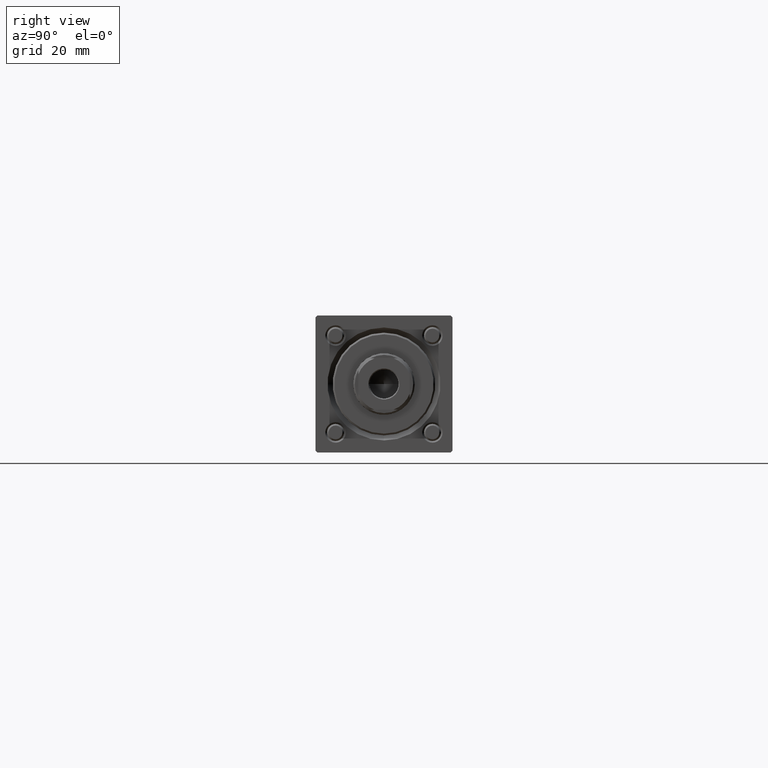
[diagram: clean part render]
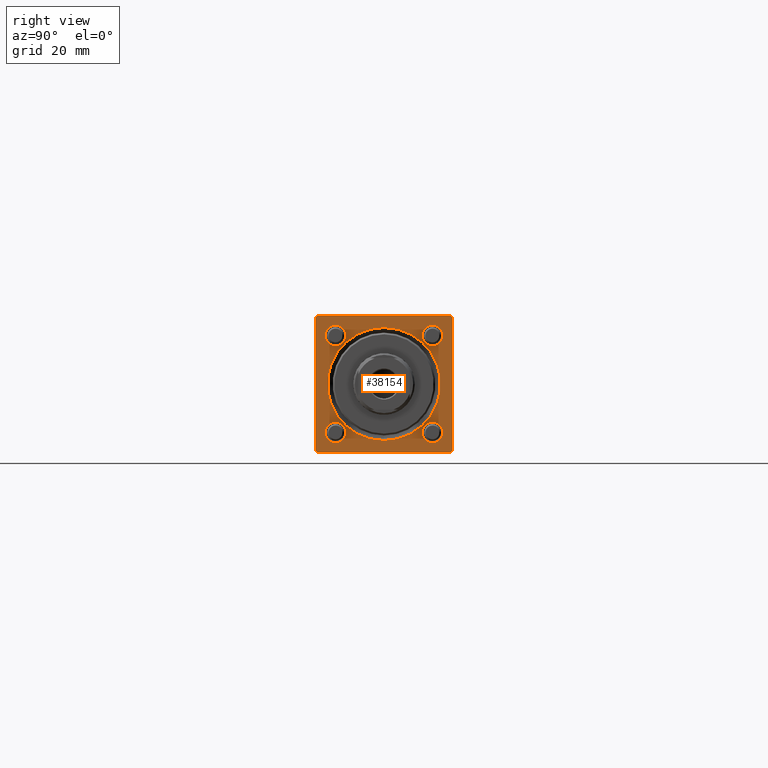
[diagram: same view with one face highlighted and labeled with its STEP entity id]
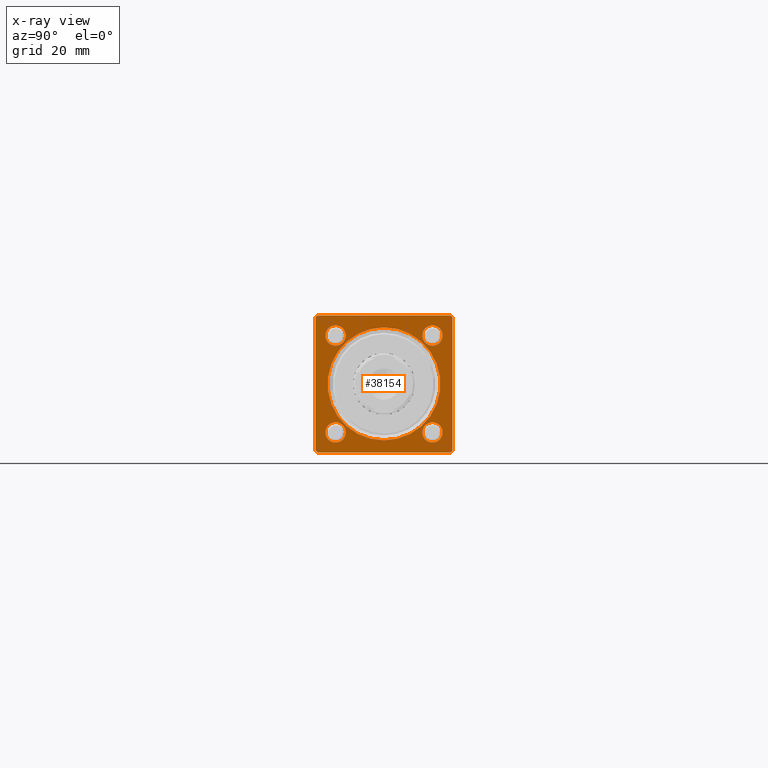
[diagram: x-ray of the same camera — body ghosted, the highlighted face saturated]
A machine part, right view. The second image highlights one B-rep face of the part: STEP entity #38154.
The next image is the same camera in x-ray: the body ghosted, the highlighted face saturated — about 0% of this face is hidden behind the body in this view.
In plain terms, the highlighted planar face has unit normal (-1, 0, 0).
Its self-contained STEP definition (entity closure, byte-faithful):
#786 = FACE_OUTER_BOUND ( 'NONE', #45889, .T. ) ;
#789 = CARTESIAN_POINT ( 'NONE',  ( 179.0000000000000000, -19.50000000000002487, -20.00000000000000000 ) ) ;
#910 = DIRECTION ( 'NONE',  ( 0.000000000000000000, 0.000000000000000000, 1.000000000000000000 ) ) ;
#1192 = CARTESIAN_POINT ( 'NONE',  ( 179.0000000000000000, 14.15000000000000036, 14.15000000000000036 ) ) ;
#1463 = DIRECTION ( 'NONE',  ( -1.000000000000000000, -0.000000000000000000, -0.000000000000000000 ) ) ;
#1474 = DIRECTION ( 'NONE',  ( 0.000000000000000000, 0.000000000000000000, 1.000000000000000000 ) ) ;
#2105 = AXIS2_PLACEMENT_3D ( 'NONE', #18940, #1463, #910 ) ;
#2646 = ORIENTED_EDGE ( 'NONE', *, *, #13769, .T. ) ;
#2763 = CARTESIAN_POINT ( 'NONE',  ( 179.0000000000000000, 19.99999999999999645, -19.50000000000000000 ) ) ;
#2836 = EDGE_CURVE ( 'NONE', #26387, #24884, #55268, .T. ) ;
#2943 = VERTEX_POINT ( 'NONE', #45751 ) ;
#3174 = CARTESIAN_POINT ( 'NONE',  ( 179.0000000000000000, -20.00000000000000355, 19.50000000000002487 ) ) ;
#3383 = LINE ( 'NONE', #3946, #17032 ) ;
#3913 = CARTESIAN_POINT ( 'NONE',  ( 179.0000000000000000, 0.000000000000000000, -16.49999999999998579 ) ) ;
#3943 = DIRECTION ( 'NONE',  ( 0.000000000000000000, 0.000000000000000000, 1.000000000000000000 ) ) ;
#3946 = CARTESIAN_POINT ( 'NONE',  ( 179.0000000000000000, 19.99999999999999645, -20.00000000000000000 ) ) ;
#4084 = CARTESIAN_POINT ( 'NONE',  ( 179.0000000000000000, 19.99999999999999645, 20.00000000000000000 ) ) ;
#4404 = EDGE_CURVE ( 'NONE', #24884, #26387, #22393, .T. ) ;
#4505 = DIRECTION ( 'NONE',  ( 0.000000000000000000, 0.000000000000000000, 1.000000000000000000 ) ) ;
#4514 = FACE_BOUND ( 'NONE', #16748, .T. ) ;
#6398 = VERTEX_POINT ( 'NONE', #31276 ) ;
#6783 = CARTESIAN_POINT ( 'NONE',  ( 179.0000000000000000, 14.15000000000000036, -14.15000000000000036 ) ) ;
#7160 = VERTEX_POINT ( 'NONE', #29382 ) ;
#7767 = VERTEX_POINT ( 'NONE', #3913 ) ;
#7962 = VECTOR ( 'NONE', #39074, 1000.000000000000000 ) ;
#8223 = CARTESIAN_POINT ( 'NONE',  ( 179.0000000000000000, -14.15000000000000036, 14.15000000000000036 ) ) ;
#8541 = EDGE_CURVE ( 'NONE', #2943, #22365, #16830, .T. ) ;
#8771 = DIRECTION ( 'NONE',  ( 0.000000000000000000, -0.7071067811865474617, 0.7071067811865474617 ) ) ;
#8942 = CARTESIAN_POINT ( 'NONE',  ( 179.0000000000000000, -20.00000000000000355, 19.99999999999999645 ) ) ;
#9451 = ORIENTED_EDGE ( 'NONE', *, *, #4404, .T. ) ;
#9946 = FACE_BOUND ( 'NONE', #41167, .T. ) ;
#10665 = ORIENTED_EDGE ( 'NONE', *, *, #26443, .T. ) ;
#11099 = CARTESIAN_POINT ( 'NONE',  ( 179.0000000000000000, -20.00000000000000355, 19.50000000000002487 ) ) ;
#11206 = ORIENTED_EDGE ( 'NONE', *, *, #8541, .T. ) ;
#11365 = DIRECTION ( 'NONE',  ( 0.000000000000000000, 0.000000000000000000, 1.000000000000000000 ) ) ;
#11515 = AXIS2_PLACEMENT_3D ( 'NONE', #19932, #15613, #24519 ) ;
#11862 = EDGE_CURVE ( 'NONE', #49887, #39176, #51212, .T. ) ;
#12198 = CARTESIAN_POINT ( 'NONE',  ( 179.0000000000000000, 19.50000000000002487, 20.00000000000000000 ) ) ;
#12254 = CARTESIAN_POINT ( 'NONE',  ( 179.0000000000000000, 0.000000000000000000, 0.000000000000000000 ) ) ;
#12817 = CARTESIAN_POINT ( 'NONE',  ( 179.0000000000000000, -14.15000000000000036, 14.15000000000000036 ) ) ;
#12970 = DIRECTION ( 'NONE',  ( 0.000000000000000000, 0.000000000000000000, 1.000000000000000000 ) ) ;
#13053 = CARTESIAN_POINT ( 'NONE',  ( 179.0000000000000000, 19.99999999999999645, -19.50000000000000000 ) ) ;
#13769 = EDGE_CURVE ( 'NONE', #23521, #53980, #40835, .T. ) ;
#14179 = VECTOR ( 'NONE', #24282, 1000.000000000000114 ) ;
#14800 = DIRECTION ( 'NONE',  ( -1.000000000000000000, -0.000000000000000000, -0.000000000000000000 ) ) ;
#15224 = VERTEX_POINT ( 'NONE', #51317 ) ;
#15229 = AXIS2_PLACEMENT_3D ( 'NONE', #12254, #55843, #29771 ) ;
#15613 = DIRECTION ( 'NONE',  ( -1.000000000000000000, -0.000000000000000000, -0.000000000000000000 ) ) ;
#15705 = DIRECTION ( 'NONE',  ( 0.000000000000000000, -1.000000000000000000, -8.673617379884035472E-17 ) ) ;
#15988 = FACE_BOUND ( 'NONE', #55072, .T. ) ;
#16091 = AXIS2_PLACEMENT_3D ( 'NONE', #1192, #49354, #1474 ) ;
#16748 = EDGE_LOOP ( 'NONE', ( #17325, #20395 ) ) ;
#16830 = CIRCLE ( 'NONE', #38829, 2.999999999999976463 ) ;
#17032 = VECTOR ( 'NONE', #52682, 1000.000000000000000 ) ;
#17129 = CARTESIAN_POINT ( 'NONE',  ( 179.0000000000000000, -19.50000000000006040, 19.99999999999999645 ) ) ;
#17325 = ORIENTED_EDGE ( 'NONE', *, *, #53767, .T. ) ;
#17368 = EDGE_CURVE ( 'NONE', #31749, #39176, #43361, .T. ) ;
#18534 = DIRECTION ( 'NONE',  ( -0.000000000000000000, 0.000000000000000000, 1.000000000000000000 ) ) ;
#18796 = CARTESIAN_POINT ( 'NONE',  ( 179.0000000000000000, 19.99999999999999645, 19.50000000000002842 ) ) ;
#18940 = CARTESIAN_POINT ( 'NONE',  ( 179.0000000000000000, 14.15000000000000036, -14.15000000000000036 ) ) ;
#19932 = CARTESIAN_POINT ( 'NONE',  ( 179.0000000000000000, 14.15000000000000036, 14.15000000000000036 ) ) ;
#19965 = CARTESIAN_POINT ( 'NONE',  ( 179.0000000000000000, 14.15000000000000036, 11.15000000000002700 ) ) ;
#20395 = ORIENTED_EDGE ( 'NONE', *, *, #20862, .T. ) ;
#20727 = VECTOR ( 'NONE', #8771, 1000.000000000000114 ) ;
#20862 = EDGE_CURVE ( 'NONE', #36508, #7767, #40141, .T. ) ;
#21273 = DIRECTION ( 'NONE',  ( 0.000000000000000000, 8.673617379884036705E-17, -1.000000000000000000 ) ) ;
#21788 = EDGE_CURVE ( 'NONE', #28064, #44743, #45622, .T. ) ;
#22365 = VERTEX_POINT ( 'NONE', #30830 ) ;
#22393 = CIRCLE ( 'NONE', #53483, 2.999999999999976463 ) ;
#22969 = ORIENTED_EDGE ( 'NONE', *, *, #53741, .F. ) ;
#23521 = VERTEX_POINT ( 'NONE', #38171 ) ;
#24282 = DIRECTION ( 'NONE',  ( -0.000000000000000000, 0.7071067811865474617, 0.7071067811865474617 ) ) ;
#24519 = DIRECTION ( 'NONE',  ( 0.000000000000000000, 0.000000000000000000, 1.000000000000000000 ) ) ;
#24884 = VERTEX_POINT ( 'NONE', #46512 ) ;
#25665 = EDGE_CURVE ( 'NONE', #6398, #46214, #44704, .T. ) ;
#26319 = PLANE ( 'NONE',  #28530 ) ;
#26387 = VERTEX_POINT ( 'NONE', #32359 ) ;
#26443 = EDGE_CURVE ( 'NONE', #7160, #15224, #31184, .T. ) ;
#26585 = DIRECTION ( 'NONE',  ( -1.000000000000000000, -0.000000000000000000, -0.000000000000000000 ) ) ;
#27565 = CARTESIAN_POINT ( 'NONE',  ( 179.0000000000000000, 19.49999999999999645, -20.00000000000000000 ) ) ;
#28064 = VERTEX_POINT ( 'NONE', #17129 ) ;
#28530 = AXIS2_PLACEMENT_3D ( 'NONE', #36040, #48085, #18534 ) ;
#29382 = CARTESIAN_POINT ( 'NONE',  ( 179.0000000000000000, -20.00000000000000000, -19.50000000000002487 ) ) ;
#29452 = DIRECTION ( 'NONE',  ( 0.000000000000000000, 0.000000000000000000, 1.000000000000000000 ) ) ;
#29771 = DIRECTION ( 'NONE',  ( 0.000000000000000000, 0.000000000000000000, 1.000000000000000000 ) ) ;
#29953 = CARTESIAN_POINT ( 'NONE',  ( 179.0000000000000000, 2.020667218593131128E-15, 16.49999999999998579 ) ) ;
#30774 = VECTOR ( 'NONE', #15705, 1000.000000000000000 ) ;
#30830 = CARTESIAN_POINT ( 'NONE',  ( 179.0000000000000000, 14.15000000000000036, -11.15000000000002522 ) ) ;
#31184 = LINE ( 'NONE', #789, #50227 ) ;
#31276 = CARTESIAN_POINT ( 'NONE',  ( 179.0000000000000000, -14.15000000000000036, 11.14999999999999858 ) ) ;
#31749 = VERTEX_POINT ( 'NONE', #18796 ) ;
#32359 = CARTESIAN_POINT ( 'NONE',  ( 179.0000000000000000, -14.15000000000000036, -17.14999999999997726 ) ) ;
#33550 = CIRCLE ( 'NONE', #15229, 16.49999999999998579 ) ;
#33823 = EDGE_CURVE ( 'NONE', #46214, #6398, #34954, .T. ) ;
#34638 = FACE_BOUND ( 'NONE', #43882, .T. ) ;
#34783 = DIRECTION ( 'NONE',  ( -1.000000000000000000, -0.000000000000000000, -0.000000000000000000 ) ) ;
#34841 = ORIENTED_EDGE ( 'NONE', *, *, #33823, .T. ) ;
#34954 = CIRCLE ( 'NONE', #41322, 3.000000000000004441 ) ;
#35554 = AXIS2_PLACEMENT_3D ( 'NONE', #12817, #26585, #4505 ) ;
#36040 = CARTESIAN_POINT ( 'NONE',  ( 179.0000000000000000, 0.000000000000000000, 0.000000000000000000 ) ) ;
#36345 = ORIENTED_EDGE ( 'NONE', *, *, #21788, .T. ) ;
#36508 = VERTEX_POINT ( 'NONE', #29953 ) ;
#36660 = EDGE_LOOP ( 'NONE', ( #11206, #52926 ) ) ;
#37157 = CIRCLE ( 'NONE', #16091, 2.999999999999973355 ) ;
#37251 = CARTESIAN_POINT ( 'NONE',  ( 179.0000000000000000, 19.99999999999999645, 20.00000000000000000 ) ) ;
#37410 = VECTOR ( 'NONE', #38170, 1000.000000000000000 ) ;
#38154 = ADVANCED_FACE ( 'NONE', ( #34638, #52102, #15988, #9946, #4514, #786 ), #26319, .F. ) ;
#38170 = DIRECTION ( 'NONE',  ( -0.000000000000000000, -0.7071067811865279218, -0.7071067811865671127 ) ) ;
#38171 = CARTESIAN_POINT ( 'NONE',  ( 179.0000000000000000, 14.15000000000000036, 17.14999999999997726 ) ) ;
#38498 = DIRECTION ( 'NONE',  ( -1.000000000000000000, -0.000000000000000000, -0.000000000000000000 ) ) ;
#38829 = AXIS2_PLACEMENT_3D ( 'NONE', #6783, #14800, #11365 ) ;
#39074 = DIRECTION ( 'NONE',  ( 0.000000000000000000, 0.000000000000000000, -1.000000000000000000 ) ) ;
#39176 = VERTEX_POINT ( 'NONE', #13053 ) ;
#39329 = LINE ( 'NONE', #8942, #47119 ) ;
#39747 = AXIS2_PLACEMENT_3D ( 'NONE', #43220, #43507, #3943 ) ;
#40141 = CIRCLE ( 'NONE', #44711, 16.49999999999998579 ) ;
#40835 = CIRCLE ( 'NONE', #11515, 2.999999999999973355 ) ;
#40989 = ORIENTED_EDGE ( 'NONE', *, *, #54758, .T. ) ;
#41167 = EDGE_LOOP ( 'NONE', ( #48745, #34841 ) ) ;
#41322 = AXIS2_PLACEMENT_3D ( 'NONE', #8223, #51224, #29452 ) ;
#43073 = DIRECTION ( 'NONE',  ( 0.000000000000000000, 0.000000000000000000, 1.000000000000000000 ) ) ;
#43220 = CARTESIAN_POINT ( 'NONE',  ( 179.0000000000000000, -14.15000000000000036, -14.15000000000000036 ) ) ;
#43317 = ORIENTED_EDGE ( 'NONE', *, *, #56666, .T. ) ;
#43361 = LINE ( 'NONE', #4084, #7962 ) ;
#43507 = DIRECTION ( 'NONE',  ( -1.000000000000000000, -0.000000000000000000, -0.000000000000000000 ) ) ;
#43743 = LINE ( 'NONE', #12198, #20727 ) ;
#43882 = EDGE_LOOP ( 'NONE', ( #54413, #9451 ) ) ;
#44647 = ORIENTED_EDGE ( 'NONE', *, *, #53615, .T. ) ;
#44704 = CIRCLE ( 'NONE', #35554, 3.000000000000004441 ) ;
#44711 = AXIS2_PLACEMENT_3D ( 'NONE', #47653, #38498, #43073 ) ;
#44743 = VERTEX_POINT ( 'NONE', #11099 ) ;
#45250 = EDGE_CURVE ( 'NONE', #22365, #2943, #54278, .T. ) ;
#45622 = LINE ( 'NONE', #3174, #37410 ) ;
#45751 = CARTESIAN_POINT ( 'NONE',  ( 179.0000000000000000, 14.15000000000000036, -17.14999999999997726 ) ) ;
#45889 = EDGE_LOOP ( 'NONE', ( #53610, #10665, #22969, #52691, #53236, #40989, #44647, #36345 ) ) ;
#46214 = VERTEX_POINT ( 'NONE', #49898 ) ;
#46391 = LINE ( 'NONE', #37251, #30774 ) ;
#46512 = CARTESIAN_POINT ( 'NONE',  ( 179.0000000000000000, -14.15000000000000036, -11.15000000000002522 ) ) ;
#47119 = VECTOR ( 'NONE', #21273, 1000.000000000000000 ) ;
#47223 = VERTEX_POINT ( 'NONE', #55631 ) ;
#47653 = CARTESIAN_POINT ( 'NONE',  ( 179.0000000000000000, 0.000000000000000000, 0.000000000000000000 ) ) ;
#48085 = DIRECTION ( 'NONE',  ( -1.000000000000000000, 0.000000000000000000, -0.000000000000000000 ) ) ;
#48745 = ORIENTED_EDGE ( 'NONE', *, *, #25665, .T. ) ;
#49091 = EDGE_CURVE ( 'NONE', #44743, #7160, #39329, .T. ) ;
#49354 = DIRECTION ( 'NONE',  ( -1.000000000000000000, -0.000000000000000000, -0.000000000000000000 ) ) ;
#49887 = VERTEX_POINT ( 'NONE', #27565 ) ;
#49898 = CARTESIAN_POINT ( 'NONE',  ( 179.0000000000000000, -14.15000000000000036, 17.15000000000000568 ) ) ;
#50227 = VECTOR ( 'NONE', #56696, 1000.000000000000114 ) ;
#51212 = LINE ( 'NONE', #2763, #14179 ) ;
#51224 = DIRECTION ( 'NONE',  ( -1.000000000000000000, -0.000000000000000000, -0.000000000000000000 ) ) ;
#51317 = CARTESIAN_POINT ( 'NONE',  ( 179.0000000000000000, -19.50000000000002487, -20.00000000000000000 ) ) ;
#52102 = FACE_BOUND ( 'NONE', #36660, .T. ) ;
#52682 = DIRECTION ( 'NONE',  ( 0.000000000000000000, -1.000000000000000000, 0.000000000000000000 ) ) ;
#52691 = ORIENTED_EDGE ( 'NONE', *, *, #11862, .T. ) ;
#52926 = ORIENTED_EDGE ( 'NONE', *, *, #45250, .T. ) ;
#53236 = ORIENTED_EDGE ( 'NONE', *, *, #17368, .F. ) ;
#53483 = AXIS2_PLACEMENT_3D ( 'NONE', #56561, #34783, #12970 ) ;
#53610 = ORIENTED_EDGE ( 'NONE', *, *, #49091, .T. ) ;
#53615 = EDGE_CURVE ( 'NONE', #47223, #28064, #46391, .T. ) ;
#53741 = EDGE_CURVE ( 'NONE', #49887, #15224, #3383, .T. ) ;
#53767 = EDGE_CURVE ( 'NONE', #7767, #36508, #33550, .T. ) ;
#53980 = VERTEX_POINT ( 'NONE', #19965 ) ;
#54278 = CIRCLE ( 'NONE', #2105, 2.999999999999976463 ) ;
#54413 = ORIENTED_EDGE ( 'NONE', *, *, #2836, .T. ) ;
#54758 = EDGE_CURVE ( 'NONE', #31749, #47223, #43743, .T. ) ;
#55072 = EDGE_LOOP ( 'NONE', ( #43317, #2646 ) ) ;
#55268 = CIRCLE ( 'NONE', #39747, 2.999999999999976463 ) ;
#55631 = CARTESIAN_POINT ( 'NONE',  ( 179.0000000000000000, 19.50000000000002487, 20.00000000000000000 ) ) ;
#55843 = DIRECTION ( 'NONE',  ( -1.000000000000000000, -0.000000000000000000, -0.000000000000000000 ) ) ;
#56561 = CARTESIAN_POINT ( 'NONE',  ( 179.0000000000000000, -14.15000000000000036, -14.15000000000000036 ) ) ;
#56666 = EDGE_CURVE ( 'NONE', #53980, #23521, #37157, .T. ) ;
#56696 = DIRECTION ( 'NONE',  ( 0.000000000000000000, 0.7071067811865474617, -0.7071067811865474617 ) ) ;